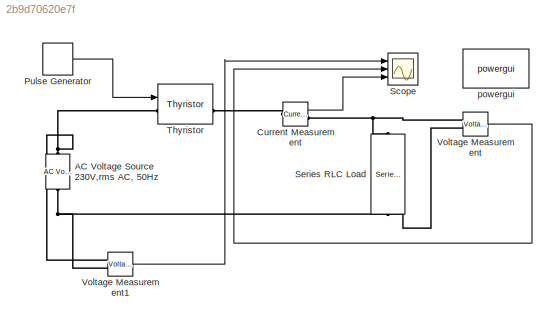
MODEL slx_2b9d70620e7f
KIND model
CONFIG AbsTol = auto
CONFIG FixedStep = auto
CONFIG MaxStep = auto
CONFIG MinStep = auto
CONFIG RelTol = 1e-3
CONFIG SampleTimeConstraint = Unconstrained
CONFIG Solver = ode45
CONFIG SolverMode = Auto
CONFIG SolverName = ode45
CONFIG StartTime = 0.0
CONFIG StopTime = 0.5
BLOCK [Reference] AC Voltage Source 230V,rms AC, 50Hz  REF=powerlib/Electrical
Sources/AC Voltage Source
  Amplitude = 325
  Frequency = 50
  Measurements = None
  Phase = 0
  Ports = [0, 0, 0, 0, 0, 1, 1]
  SampleTime = 0
  SourceBlock = powerlib/Electrical\nSources/AC Voltage Source
  SourceType = AC Voltage Source
BLOCK [Reference] Current Measurement  REF=powerlib/Measurements/Current Measurement
  OutputType = Complex
  PSBequivalent = 0
  PhasorSimulation = off
  Ports = [0, 1, 0, 0, 0, 1, 1]
  SourceBlock = powerlib/Measurements/Current Measurement
  SourceType = Current Measurement
  UserDataPersistent = on
BLOCK [DiscretePulseGenerator] Pulse Generator
  Amplitude = 50
  Period = 1/50
  PhaseDelay = 30/(50*360)
  Ports = [0, 1]
  PulseType = Time based
  PulseWidth = 5
BLOCK [Scope] Scope
  Floating = off
  NumInputPorts = 3
  Ports = [3]
  YMax = 600~600~600
  YMin = -600~-600~-600
  ZoomMode = xonly
BLOCK [Reference] Series RLC Load  REF=powerlib/Elements/Series RLC Load
  ActivePower = 10e3
  AttributesFormatString = \n
  CapacitivePower = 0
  InductivePower = 0
  InitialCurrent = 0
  InitialVoltage = 0
  LConnTagsString = a
  Measurements = None
  NominalFrequency = 60
  NominalVoltage = 1000
  Ports = [0, 0, 0, 0, 0, 1, 1]
  RConnTagsString = __new0
  SetiL0 = off
  Setx0 = off
  SourceBlock = powerlib/Elements/Series RLC Load
  SourceType = Series RLC Load
BLOCK [Reference] Thyristor  REF=powerlib/Power
Electronics/Thyristor
  Cs = 250e-9
  IC = 0
  Lon = 0
  Measurements = on
  Ports = [1, 1, 0, 0, 0, 1, 1]
  Ron = 0.001
  Rs = 500
  SourceBlock = powerlib/Power\nElectronics/Thyristor
  SourceType = Thyristor
  Vf = 0.8
BLOCK [Reference] Voltage Measurement  REF=powerlib/Measurements/Voltage Measurement
  OutputType = Complex
  PSBequivalent = 0
  PhasorSimulation = off
  Ports = [0, 1, 0, 0, 0, 2]
  SourceBlock = powerlib/Measurements/Voltage Measurement
  SourceType = Voltage Measurement
  UserDataPersistent = on
BLOCK [Reference] Voltage Measurement1  REF=powerlib/Measurements/Voltage Measurement
  OutputType = Complex
  PSBequivalent = 0
  PhasorSimulation = off
  Ports = [0, 1, 0, 0, 0, 2]
  SourceBlock = powerlib/Measurements/Voltage Measurement
  SourceType = Voltage Measurement
  UserDataPersistent = on
BLOCK [Reference] powergui  REF=powerlib/powergui
  DisableRonSwitches = off
  DisableSnubberDevices = off
  DisableVfSwitches = off
  DisplayEquations = off
  DisplayStyle = 1
  EnableUseOfTLC = off
  ErrMax = 1e-4
  Frange = [0:2:500]
  FreqAxis = off
  FunctionMessages = off
  HookPort = off
  Interpol = off
  Iterations = 50
  MaxFrequency = 1000
  Pbase = 100e6
  Ports = []
  Priority = 1
  ResistiveCurrentMeasurement = off
  RestoreLinks = warning
  RmsSteady = 1
  SPID = off
  SampleTime = 50e-6
  ShowGrid = off
  SolverType = Tustin/Backward Euler (TBE)
  SourceBlock = powerlib/powergui
  SourceType = PSB option menu block
  StartTime = 0.0
  SwTol = 0
  Ts = 100
  UnitsV = kV
  UnitsW = MW
  UserDataPersistent = on
  Xlog = on
  Ylog = off
  ZoomFFT = off
  buscounter = 0
  cycles = 1
  display = off
  echomessages = off
  frequency = 60
  frequencyindice = 50
  frequencyindicesteady = 1
  fundamental = 60
  methode = off
  save = off
  structure = 0
  variable = ZData
  x0status = blocks
LINE Current Measurement:1 -> Scope:3
LINE Pulse Generator:1 -> Thyristor:1
LINE Voltage Measurement1:1 -> Scope:1
LINE Voltage Measurement:1 -> Scope:2
PNET net1: AC Voltage Source 230V,rms AC, 50Hz:LConn1 -- Series RLC Load:RConn1 -- Voltage Measurement1:LConn2 -- Voltage Measurement:LConn2
PNET net2: AC Voltage Source 230V,rms AC, 50Hz:RConn1 -- Thyristor:LConn1 -- Voltage Measurement1:LConn1
PLINE Current Measurement:LConn1 -- Thyristor:RConn1
PNET net3: Current Measurement:RConn1 -- Series RLC Load:LConn1 -- Voltage Measurement:LConn1
note: PNET lines group multi-terminal physical nets as a canonical sorted terminal list (undirected conserving connections); 2-terminal nets keep the pairwise PLINE form
